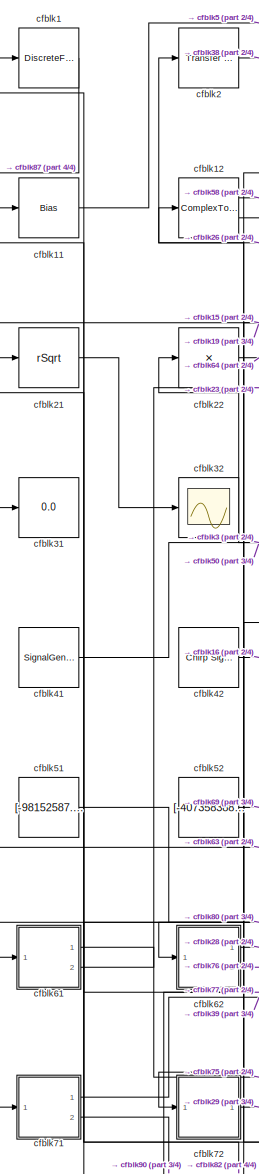
[diagram: root canvas - part 1/4, left side, full height]
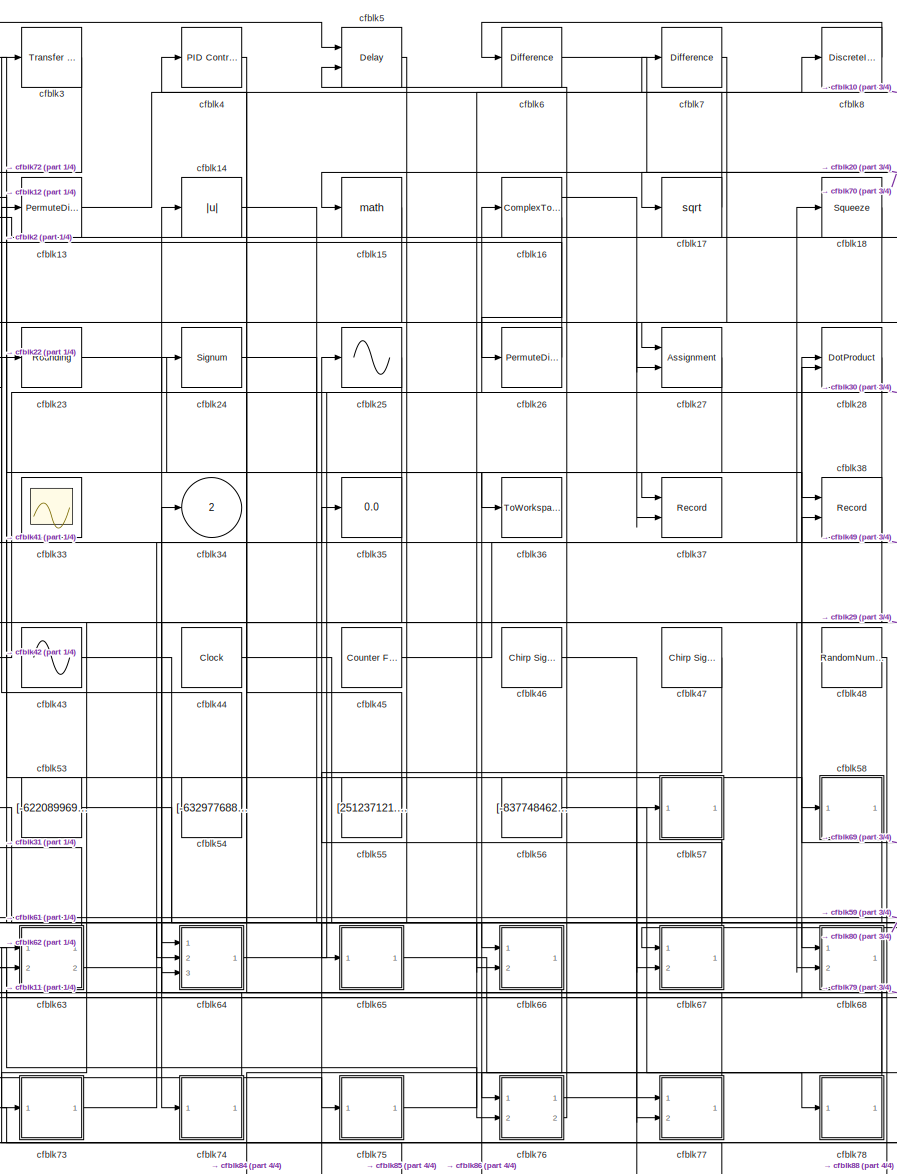
[diagram: root canvas - part 2/4, center side, full height]
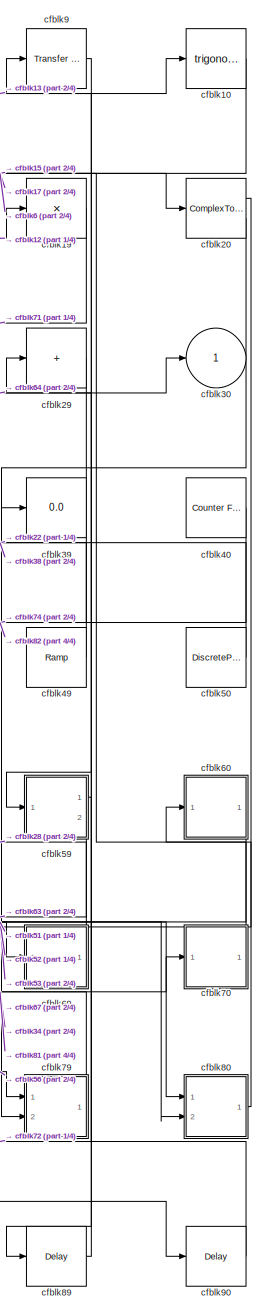
[diagram: root canvas - part 3/4, right side, full height]
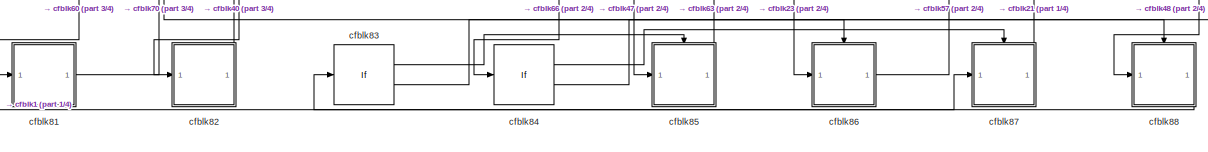
[diagram: root canvas - part 4/4, full width, bottom band]
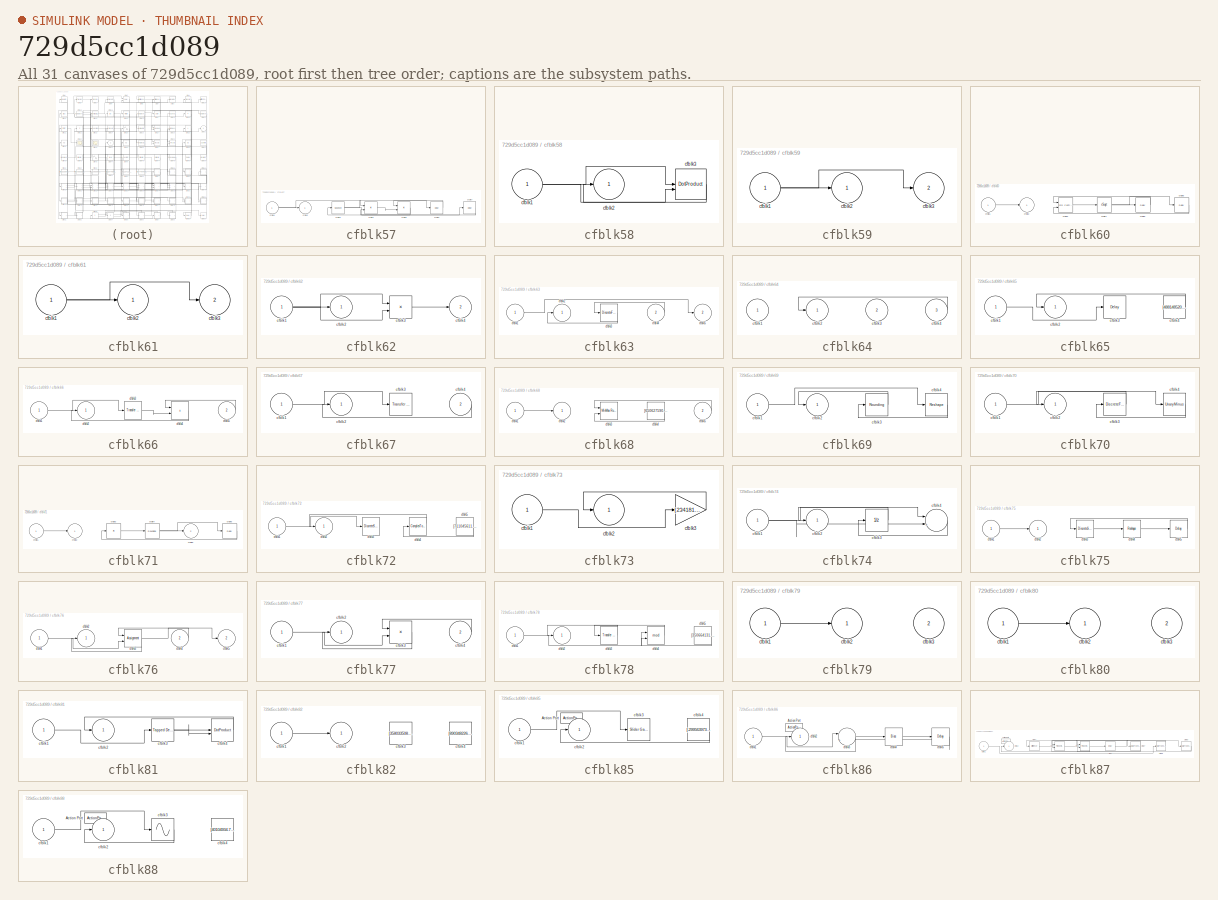
[diagram: thumbnail index - all 31 canvases of the model, root first then tree order]
MODEL slx_729d5cc1d089
KIND model
CONFIG AbsTol = auto
CONFIG EnableMultiTasking = off
CONFIG FixedStep = auto
CONFIG MaxStep = auto
CONFIG MinStep = auto
CONFIG RelTol = 1e-3
CONFIG SampleTimeConstraint = Unconstrained
CONFIG SolverName = VariableStepAuto
CONFIG StartTime = 0.0
CONFIG StopTime = 10.0
BLOCK [DiscreteFir] cfblk1
  InputPortMap = u0
  OutputPortMap = o0
  Ports = [1, 1]
  SampleTime = 1
BLOCK [Trigonometry] cfblk10
  Ports = [1, 1]
BLOCK [Bias] cfblk11
  Bias = [-196383932.496117]
  SaturateOnIntegerOverflow = off
BLOCK [ComplexToMagnitudeAngle] cfblk12
  Ports = [1, 2]
BLOCK [PermuteDimensions] cfblk13
BLOCK [Abs] cfblk14
  SaturateOnIntegerOverflow = off
BLOCK [Math] cfblk15
  Ports = [1, 1]
BLOCK [ComplexToMagnitudeAngle] cfblk16
  Ports = [1, 2]
BLOCK [Sqrt] cfblk17
BLOCK [Squeeze] cfblk18
BLOCK [Product] cfblk19
  Inputs = *
  Ports = [1, 1]
BLOCK [Reference] cfblk2  REF=simulink/Discrete/Transfer Fcn
First Order
  Ports = [1, 1]
  SourceBlock = simulink/Discrete/Transfer Fcn\nFirst Order
  SourceProductBaseCode = SL
  SourceType = First Order Transfer Fcn
BLOCK [ComplexToMagnitudeAngle] cfblk20
  Ports = [1, 2]
BLOCK [Sqrt] cfblk21
  AlgorithmType = Newton-Raphson
  Operator = rSqrt
BLOCK [Product] cfblk22
  Inputs = *
  Ports = [1, 1]
BLOCK [Rounding] cfblk23
BLOCK [Signum] cfblk24
BLOCK [Sin] cfblk25
  Ports = [1, 1]
  SampleTime = 0
  TimeSource = Use external signal
BLOCK [PermuteDimensions] cfblk26
BLOCK [Assignment] cfblk27
  DiagnosticForDimensions = Warning
  IndexOptions = Index vector (dialog)
  Indices = 1
  OutputSizes = 1
  Ports = [2, 1]
BLOCK [DotProduct] cfblk28
  OutDataTypeStr = Inherit: Inherit via internal rule
BLOCK [Sum] cfblk29
  IconShape = rectangular
  Inputs = +
  Ports = [1, 1]
BLOCK [Reference] cfblk3  REF=simulink/Discrete/Transfer Fcn
First Order
  Ports = [1, 1]
  SourceBlock = simulink/Discrete/Transfer Fcn\nFirst Order
  SourceProductBaseCode = SL
  SourceType = First Order Transfer Fcn
BLOCK [Outport] cfblk30
BLOCK [Display] cfblk31
  Decimation = 1
  Ports = [1]
BLOCK [Scope] cfblk32
  Floating = off
  NumInputPorts = 1
  Ports = [1]
  ScopeSpecificationString = Simulink.scopes.TimeScopeBlockCfg('CurrentConfiguration', extmgr.ConfigurationSet(extmgr.Configuration('Core','General UI',true),extmgr.Configuration('Core','Source UI',true),extmgr.Configuration('Sources','WiredSimulink',true),extmgr.Configuration('Visuals','Time Domain',true),extmgr.Configuration('Tools','Plot Navigation',true),extmgr.Configuration('Tools','Measurements',true)),'Version','2021b'...<+1ch>
BLOCK [Scope] cfblk33
  Floating = on
  NumInputPorts = 1
  Ports = []
  ScopeSpecificationString = Simulink.scopes.TimeScopeBlockCfg('CurrentConfiguration', extmgr.ConfigurationSet(extmgr.Configuration('Core','General UI',true),extmgr.Configuration('Core','Source UI',true),extmgr.Configuration('Sources','WiredSimulink',true),extmgr.Configuration('Visuals','Time Domain',true),extmgr.Configuration('Tools','Plot Navigation',true),extmgr.Configuration('Tools','Measurements',true)),'Version','2021b'...<+1ch>
BLOCK [Outport] cfblk34
  Port = 2
BLOCK [Display] cfblk35
  Decimation = 1
  Ports = [1]
BLOCK [ToWorkspace] cfblk36
  FixptAsFi = on
  MaxDataPoints = inf
  Ports = [1]
  SampleTime = -1
  SaveFormat = Timeseries
  VariableName = degkbxy
BLOCK [Record] cfblk37
  CompatibilityTag = XY
  FileSettingsInternal = {"entries":[{"content":{"excelSettings":{"content":{},"type":"Streamout.ExcelSettings"}},"type":"Streamout.FileSettingStorage","uuid":"bb6d756a-001a-408b-a095-1104ae711c65"}],"packageUris":["http://schema.mathworks.com/mf0/streamout_blocks/R2020a"],"version":"1.0"}
  Layout = [1 1]
  Ports = [2]
  SignalsInternal = {"entries":[{"content":{"signals":[{"content":{"blockPath":["sampleModel1_pp/cfblk37"],"channel":[],"dimensions":[1],"domain":"sampleModel1_pp/cfblk37","lineColor":"#64d413","plots":[],"port":1,"sid":[""],"signalID":289,"signalName":"cfblk14"},"type":"RecordBlkView.Signal","uuid":"b7125f66-6767-4e24-ab15-d829646fc9d1"},{"content":{"blockPath":["sampleModel1_pp/cfblk37"],"channel":[],"dimensions":[...<+385ch>
  VisualizationBindings = {"xyplotplugin":{"info":[{"series":[],"subplotID":1}]}}
BLOCK [Record] cfblk38
  CompatibilityTag = XY
  FileSettingsInternal = {"entries":[{"content":{"excelSettings":{"content":{},"type":"Streamout.ExcelSettings"}},"type":"Streamout.FileSettingStorage","uuid":"c6d59cba-a4d7-46c2-b90e-99ed7afc8239"}],"packageUris":["http://schema.mathworks.com/mf0/streamout_blocks/R2020a"],"version":"1.0"}
  Layout = [1 1]
  Ports = [2]
  SignalsInternal = {"entries":[{"content":{"signals":[{"content":{"blockPath":["sampleModel1_pp/cfblk38"],"channel":[],"dimensions":[1],"domain":"sampleModel1_pp/cfblk38","lineColor":"#fe330a","plots":[],"port":1,"sid":[""],"signalID":297,"signalName":"cfblk2"},"type":"RecordBlkView.Signal","uuid":"053d681e-aaab-497a-9fbb-af229faf3b0f"},{"content":{"blockPath":["sampleModel1_pp/cfblk38"],"channel":[],"dimensions":[1...<+382ch>
  VisualizationBindings = {"xyplotplugin":{"info":[{"series":[],"subplotID":1}]}}
BLOCK [Display] cfblk39
  Decimation = 1
  Ports = [1]
BLOCK [Reference] cfblk4  REF=slpidlib/PID Controller
  Ports = [1, 1]
  SourceBlock = slpidlib/PID Controller
  SourceProductBaseCode = SL
  SourceType = PID 1dof
BLOCK [Reference] cfblk40  REF=simulink/Sources/Counter
Free-Running
  Ports = [0, 1]
  SourceBlock = simulink/Sources/Counter\nFree-Running
  SourceProductBaseCode = SL
  SourceType = Counter Free-Running
BLOCK [SignalGenerator] cfblk41
  Amplitude = [-21494723.199962]
  Ports = [0, 1]
  WaveForm = square
BLOCK [Reference] cfblk42  REF=simulink/Sources/Chirp Signal
  Ports = [0, 1]
  SourceBlock = simulink/Sources/Chirp Signal
  SourceProductBaseCode = SL
  SourceType = chirp
BLOCK [Sin] cfblk43
  Amplitude = [-220522326.077493]
  Bias = [-516617428.172335]
  Ports = [0, 1]
  SampleTime = 0
BLOCK [Clock] cfblk44
BLOCK [Reference] cfblk45  REF=simulink/Sources/Counter
Free-Running
  Ports = [0, 1]
  SourceBlock = simulink/Sources/Counter\nFree-Running
  SourceProductBaseCode = SL
  SourceType = Counter Free-Running
BLOCK [Reference] cfblk46  REF=simulink/Sources/Chirp Signal
  Ports = [0, 1]
  SourceBlock = simulink/Sources/Chirp Signal
  SourceProductBaseCode = SL
  SourceType = chirp
BLOCK [Reference] cfblk47  REF=simulink/Sources/Chirp Signal
  Ports = [0, 1]
  SourceBlock = simulink/Sources/Chirp Signal
  SourceProductBaseCode = SL
  SourceType = chirp
BLOCK [RandomNumber] cfblk48
  Mean = [-53044.017326]
  SampleTime = 0.1
  Seed = [821194040.000000]
  Variance = [35315.857122]
BLOCK [Reference] cfblk49  REF=simulink/Sources/Ramp
  Ports = [0, 1]
  SourceBlock = simulink/Sources/Ramp
  SourceProductBaseCode = SL
  SourceType = Ramp
BLOCK [Delay] cfblk5
  InputPortMap = u0,e6
  Ports = [2, 1]
  SampleTime = 1
  ShowEnablePort = on
BLOCK [DiscretePulseGenerator] cfblk50
  Amplitude = [298230949.912904]
  Period = [73172238.834145]
  PhaseDelay = [6.000000]
  Ports = [0, 1]
  PulseType = Time based
  PulseWidth = 5
BLOCK [Constant] cfblk51
  SampleTime = 1
  Value = [-98152587.138110]
BLOCK [Constant] cfblk52
  SampleTime = 1
  Value = [-407358388.784454]
BLOCK [Constant] cfblk53
  SampleTime = 1
  Value = [-622089969.934911]
BLOCK [Constant] cfblk54
  SampleTime = 1
  Value = [-632977688.525460]
BLOCK [Constant] cfblk55
  SampleTime = 1
  Value = [251237121.459381]
BLOCK [Constant] cfblk56
  SampleTime = 1
  Value = [-837748462.268430]
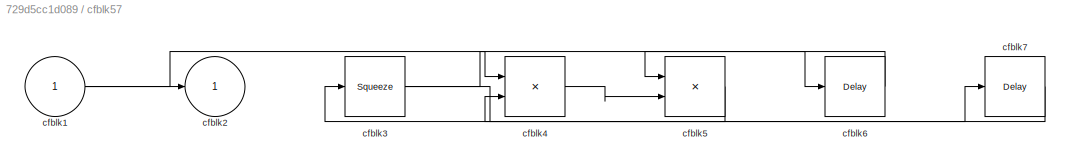
BLOCK [SubSystem] cfblk57
  Ports = [1, 1]
  RequestExecContextInheritance = off
BLOCK [Inport] cfblk57/cfblk1
BLOCK [Outport] cfblk57/cfblk2
BLOCK [Squeeze] cfblk57/cfblk3
BLOCK [Product] cfblk57/cfblk4
  Ports = [2, 1]
BLOCK [Product] cfblk57/cfblk5
  Ports = [2, 1]
BLOCK [Delay] cfblk57/cfblk6
  InputPortMap = u0
  Ports = [1, 1]
  SampleTime = 1
BLOCK [Delay] cfblk57/cfblk7
  InputPortMap = u0
  Ports = [1, 1]
  SampleTime = 1
BLOCK [SubSystem] cfblk58
  Ports = [1, 1]
  RequestExecContextInheritance = off
BLOCK [Inport] cfblk58/cfblk1
BLOCK [Outport] cfblk58/cfblk2
BLOCK [DotProduct] cfblk58/cfblk3
  OutDataTypeStr = Inherit: Inherit via internal rule
BLOCK [SubSystem] cfblk59
  Ports = [1, 2]
  RequestExecContextInheritance = off
BLOCK [Inport] cfblk59/cfblk1
BLOCK [Outport] cfblk59/cfblk2
BLOCK [Outport] cfblk59/cfblk3
  Port = 2
BLOCK [Reference] cfblk6  REF=simulink/Discrete/Difference
  Ports = [1, 1]
  SourceBlock = simulink/Discrete/Difference
  SourceProductBaseCode = SL
  SourceType = Difference
BLOCK [SubSystem] cfblk60
  Ports = [1, 1]
  RequestExecContextInheritance = off
BLOCK [Inport] cfblk60/cfblk1
BLOCK [Outport] cfblk60/cfblk2
BLOCK [Reference] cfblk60/cfblk3  REF=slpidlib/PID Controller (2DOF)
  Ports = [2, 1]
  SourceBlock = slpidlib/PID Controller (2DOF)
  SourceProductBaseCode = SL
  SourceType = PID 2dof
BLOCK [Sqrt] cfblk60/cfblk4
  AlgorithmType = Newton-Raphson
  Operator = rSqrt
BLOCK [Delay] cfblk60/cfblk5
  InputPortMap = u0
  Ports = [1, 1]
  SampleTime = 1
BLOCK [Delay] cfblk60/cfblk6
  InputPortMap = u0
  Ports = [1, 1]
  SampleTime = 1
BLOCK [SubSystem] cfblk61
  Ports = [1, 2]
  RequestExecContextInheritance = off
BLOCK [Inport] cfblk61/cfblk1
BLOCK [Outport] cfblk61/cfblk2
BLOCK [Outport] cfblk61/cfblk3
  Port = 2
BLOCK [SubSystem] cfblk62
  Ports = [1, 2]
  RequestExecContextInheritance = off
BLOCK [Inport] cfblk62/cfblk1
BLOCK [Outport] cfblk62/cfblk2
BLOCK [Product] cfblk62/cfblk3
  Ports = [2, 1]
BLOCK [Outport] cfblk62/cfblk4
  Port = 2
BLOCK [SubSystem] cfblk63
  Ports = [2, 2]
  RequestExecContextInheritance = off
BLOCK [Inport] cfblk63/cfblk1
BLOCK [Outport] cfblk63/cfblk2
BLOCK [DiscreteFir] cfblk63/cfblk3
  InputPortMap = u0
  OutputPortMap = o0
  Ports = [1, 1]
  SampleTime = 1
BLOCK [Inport] cfblk63/cfblk4
  Port = 2
BLOCK [Outport] cfblk63/cfblk5
  Port = 2
BLOCK [SubSystem] cfblk64
  Ports = [3, 1]
  RequestExecContextInheritance = off
BLOCK [Inport] cfblk64/cfblk1
BLOCK [Outport] cfblk64/cfblk2
BLOCK [Inport] cfblk64/cfblk3
  Port = 2
BLOCK [Inport] cfblk64/cfblk4
  Port = 3
BLOCK [SubSystem] cfblk65
  Ports = [1, 1]
  RequestExecContextInheritance = off
BLOCK [Inport] cfblk65/cfblk1
BLOCK [Outport] cfblk65/cfblk2
BLOCK [Delay] cfblk65/cfblk3
  InputPortMap = u0
  Ports = [1, 1]
  SampleTime = 1
BLOCK [Constant] cfblk65/cfblk4
  SampleTime = 1
  Value = [488148520.734925]
BLOCK [SubSystem] cfblk66
  Ports = [2, 1]
  RequestExecContextInheritance = off
BLOCK [Inport] cfblk66/cfblk1
BLOCK [Outport] cfblk66/cfblk2
BLOCK [Reference] cfblk66/cfblk3  REF=simulink/Discrete/Transfer Fcn
Real Zero
  Ports = [1, 1]
  SourceBlock = simulink/Discrete/Transfer Fcn\nReal Zero
  SourceProductBaseCode = SL
  SourceType = Transfer Fcn Real Zero
BLOCK [Sum] cfblk66/cfblk4
  IconShape = rectangular
  Ports = [2, 1]
BLOCK [Inport] cfblk66/cfblk5
  Port = 2
BLOCK [SubSystem] cfblk67
  Ports = [2, 1]
  RequestExecContextInheritance = off
BLOCK [Inport] cfblk67/cfblk1
BLOCK [Outport] cfblk67/cfblk2
BLOCK [Reference] cfblk67/cfblk3  REF=simulink/Discrete/Transfer Fcn
Lead or Lag
  Ports = [1, 1]
  SourceBlock = simulink/Discrete/Transfer Fcn\nLead or Lag
  SourceProductBaseCode = SL
  SourceType = Lead or Lag Compensator
BLOCK [Inport] cfblk67/cfblk4
  Port = 2
BLOCK [SubSystem] cfblk68
  Ports = [2, 1]
  RequestExecContextInheritance = off
BLOCK [Inport] cfblk68/cfblk1
BLOCK [Outport] cfblk68/cfblk2
BLOCK [Reference] cfblk68/cfblk3  REF=simulink/Math
Operations/MinMax
Running
Resettable
  Ports = [2, 1]
  SourceBlock = simulink/Math\nOperations/MinMax\nRunning\nResettable
  SourceProductBaseCode = SL
  SourceType = MinMax Running Resettable
BLOCK [Constant] cfblk68/cfblk4
  SampleTime = 1
  Value = [650627590.804091]
BLOCK [Inport] cfblk68/cfblk5
  Port = 2
BLOCK [SubSystem] cfblk69
  Ports = [1, 1]
  RequestExecContextInheritance = off
BLOCK [Inport] cfblk69/cfblk1
BLOCK [Outport] cfblk69/cfblk2
BLOCK [Rounding] cfblk69/cfblk3
BLOCK [Reshape] cfblk69/cfblk4
  Ports = [1, 1]
BLOCK [Reference] cfblk7  REF=simulink/Discrete/Difference
  Ports = [1, 1]
  SourceBlock = simulink/Discrete/Difference
  SourceProductBaseCode = SL
  SourceType = Difference
BLOCK [SubSystem] cfblk70
  Ports = [1, 1]
  RequestExecContextInheritance = off
BLOCK [Inport] cfblk70/cfblk1
BLOCK [Outport] cfblk70/cfblk2
BLOCK [DiscreteFilter] cfblk70/cfblk3
  InputPortMap = u0
  Ports = [1, 1]
  SampleTime = 1
BLOCK [UnaryMinus] cfblk70/cfblk4
BLOCK [SubSystem] cfblk71
  Ports = [1, 2]
  RequestExecContextInheritance = off
BLOCK [Inport] cfblk71/cfblk1
BLOCK [Outport] cfblk71/cfblk2
BLOCK [Product] cfblk71/cfblk3
  Inputs = *
  Ports = [1, 1]
BLOCK [Rounding] cfblk71/cfblk4
BLOCK [Outport] cfblk71/cfblk5
  Port = 2
BLOCK [Delay] cfblk71/cfblk6
  InputPortMap = u0
  Ports = [1, 1]
  SampleTime = 1
BLOCK [SubSystem] cfblk72
  Ports = [1, 1]
  RequestExecContextInheritance = off
BLOCK [Inport] cfblk72/cfblk1
BLOCK [Outport] cfblk72/cfblk2
BLOCK [DiscreteStateSpace] cfblk72/cfblk3
BLOCK [ComplexToMagnitudeAngle] cfblk72/cfblk4
  Ports = [1, 2]
BLOCK [Constant] cfblk72/cfblk5
  SampleTime = 1
  Value = [711045611.691823]
BLOCK [SubSystem] cfblk73
  Ports = [1, 1]
  RequestExecContextInheritance = off
BLOCK [Inport] cfblk73/cfblk1
BLOCK [Outport] cfblk73/cfblk2
BLOCK [Gain] cfblk73/cfblk3
  Gain = [234181768.786447]
BLOCK [SubSystem] cfblk74
  Ports = [1, 1]
  RequestExecContextInheritance = off
BLOCK [Inport] cfblk74/cfblk1
BLOCK [Outport] cfblk74/cfblk2
BLOCK [UnitDelay] cfblk74/cfblk3
  HasFrameUpgradeWarning = on
BLOCK [Sum] cfblk74/cfblk4
  Inputs = |++
  Ports = [2, 1]
BLOCK [SubSystem] cfblk75
  Ports = [1, 1]
  RequestExecContextInheritance = off
BLOCK [Inport] cfblk75/cfblk1
BLOCK [Outport] cfblk75/cfblk2
BLOCK [DiscreteStateSpace] cfblk75/cfblk3
BLOCK [Reshape] cfblk75/cfblk4
  Ports = [1, 1]
BLOCK [Delay] cfblk75/cfblk5
  InputPortMap = u0
  Ports = [1, 1]
  SampleTime = 1
BLOCK [SubSystem] cfblk76
  Ports = [2, 2]
  RequestExecContextInheritance = off
BLOCK [Inport] cfblk76/cfblk1
BLOCK [Outport] cfblk76/cfblk2
BLOCK [Assignment] cfblk76/cfblk3
  DiagnosticForDimensions = Warning
  IndexOptions = Index vector (dialog)
  Indices = 1
  OutputSizes = 1
  Ports = [2, 1]
BLOCK [Inport] cfblk76/cfblk4
  Port = 2
BLOCK [Outport] cfblk76/cfblk5
  Port = 2
BLOCK [SubSystem] cfblk77
  Ports = [2, 1]
  RequestExecContextInheritance = off
BLOCK [Inport] cfblk77/cfblk1
BLOCK [Outport] cfblk77/cfblk2
BLOCK [Product] cfblk77/cfblk3
  Ports = [2, 1]
BLOCK [Inport] cfblk77/cfblk4
  Port = 2
BLOCK [SubSystem] cfblk78
  Ports = [1, 1]
  RequestExecContextInheritance = off
BLOCK [Inport] cfblk78/cfblk1
BLOCK [Outport] cfblk78/cfblk2
BLOCK [Reference] cfblk78/cfblk3  REF=simulink/Discrete/Transfer Fcn
Lead or Lag
  Ports = [1, 1]
  SourceBlock = simulink/Discrete/Transfer Fcn\nLead or Lag
  SourceProductBaseCode = SL
  SourceType = Lead or Lag Compensator
BLOCK [Math] cfblk78/cfblk4
  Operator = mod
  Ports = [2, 1]
BLOCK [Constant] cfblk78/cfblk5
  SampleTime = 1
  Value = [350664131.493999]
BLOCK [SubSystem] cfblk79
  Ports = [2, 1]
  RequestExecContextInheritance = off
BLOCK [Inport] cfblk79/cfblk1
BLOCK [Outport] cfblk79/cfblk2
BLOCK [Inport] cfblk79/cfblk3
  Port = 2
BLOCK [DiscreteIntegrator] cfblk8
  ICPrevOutput = DiscIntNeverNeededParam
  ICPrevScaledInput = DiscIntNeverNeededParam
  InitialConditionSetting = Auto
  Ports = [1, 1]
BLOCK [SubSystem] cfblk80
  Ports = [2, 1]
  RequestExecContextInheritance = off
BLOCK [Inport] cfblk80/cfblk1
BLOCK [Outport] cfblk80/cfblk2
BLOCK [Inport] cfblk80/cfblk3
  Port = 2
BLOCK [SubSystem] cfblk81
  Ports = [1, 1]
  RequestExecContextInheritance = off
BLOCK [Inport] cfblk81/cfblk1
BLOCK [Outport] cfblk81/cfblk2
BLOCK [Reference] cfblk81/cfblk3  REF=simulink/Discrete/Tapped Delay
  Ports = [1, 1]
  SourceBlock = simulink/Discrete/Tapped Delay
  SourceProductBaseCode = SL
  SourceType = Tapped Delay Line
BLOCK [DotProduct] cfblk81/cfblk4
  OutDataTypeStr = Inherit: Inherit via internal rule
BLOCK [SubSystem] cfblk82
  Ports = [1, 1]
  RequestExecContextInheritance = off
BLOCK [Inport] cfblk82/cfblk1
BLOCK [Outport] cfblk82/cfblk2
BLOCK [Constant] cfblk82/cfblk3
  SampleTime = 1
  Value = [358033508.186404]
BLOCK [Constant] cfblk82/cfblk4
  SampleTime = 1
  Value = [890348226.218803]
BLOCK [If] cfblk83
  IfExpression = u1 >= 0
  Ports = [1, 2]
  SampleTime = 1
BLOCK [If] cfblk84
  IfExpression = u1 >= 0
  Ports = [1, 2]
  SampleTime = 1
BLOCK [SubSystem] cfblk85
  Ports = [1, 1, 0, 0, 0, 0, 0, 1]
  RequestExecContextInheritance = off
  TreatAsAtomicUnit = on
BLOCK [ActionPort] cfblk85/Action Port
  ActionPortLabel = if(u1 >= 0)
BLOCK [Inport] cfblk85/cfblk1
BLOCK [Outport] cfblk85/cfblk2
BLOCK [Reference] cfblk85/cfblk3  REF=simulink/Math
Operations/Slider
Gain
  Ports = [1, 1]
  SourceBlock = simulink/Math\nOperations/Slider\nGain
  SourceProductBaseCode = SL
  SourceType = Slider Gain
BLOCK [Constant] cfblk85/cfblk4
  SampleTime = 1
  Value = [-299563973.117790]
BLOCK [SubSystem] cfblk86
  Ports = [1, 1, 0, 0, 0, 0, 0, 1]
  RequestExecContextInheritance = off
  TreatAsAtomicUnit = on
BLOCK [ActionPort] cfblk86/Action Port
  ActionPortLabel = else
BLOCK [Inport] cfblk86/cfblk1
BLOCK [Outport] cfblk86/cfblk2
BLOCK [Sum] cfblk86/cfblk3
  Inputs = |++
  Ports = [2, 1]
BLOCK [Bias] cfblk86/cfblk4
  Bias = [879658940.689841]
  SaturateOnIntegerOverflow = off
BLOCK [Delay] cfblk86/cfblk5
  InputPortMap = u0
  Ports = [1, 1]
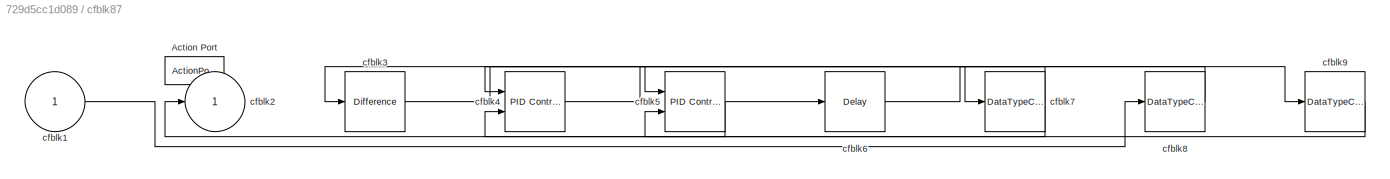
BLOCK [SubSystem] cfblk87
  Ports = [1, 1, 0, 0, 0, 0, 0, 1]
  RequestExecContextInheritance = off
  TreatAsAtomicUnit = on
BLOCK [ActionPort] cfblk87/Action Port
  ActionPortLabel = if(u1 >= 0)
BLOCK [Inport] cfblk87/cfblk1
BLOCK [Outport] cfblk87/cfblk2
BLOCK [Reference] cfblk87/cfblk3  REF=simulink/Discrete/Difference
  Ports = [1, 1]
  SourceBlock = simulink/Discrete/Difference
  SourceProductBaseCode = SL
  SourceType = Difference
BLOCK [Reference] cfblk87/cfblk4  REF=slpidlib/PID Controller (2DOF)
  Ports = [2, 1]
  SourceBlock = slpidlib/PID Controller (2DOF)
  SourceProductBaseCode = SL
  SourceType = PID 2dof
BLOCK [Reference] cfblk87/cfblk5  REF=slpidlib/PID Controller (2DOF)
  Ports = [2, 1]
  SourceBlock = slpidlib/PID Controller (2DOF)
  SourceProductBaseCode = SL
  SourceType = PID 2dof
BLOCK [Delay] cfblk87/cfblk6
  InputPortMap = u0
  Ports = [1, 1]
BLOCK [DataTypeConversion] cfblk87/cfblk7
  RndMeth = Floor
  SaturateOnIntegerOverflow = off
BLOCK [DataTypeConversion] cfblk87/cfblk8
  RndMeth = Floor
  SaturateOnIntegerOverflow = off
BLOCK [DataTypeConversion] cfblk87/cfblk9
  RndMeth = Floor
  SaturateOnIntegerOverflow = off
BLOCK [SubSystem] cfblk88
  Ports = [1, 1, 0, 0, 0, 0, 0, 1]
  RequestExecContextInheritance = off
  TreatAsAtomicUnit = on
BLOCK [ActionPort] cfblk88/Action Port
  ActionPortLabel = else
BLOCK [Inport] cfblk88/cfblk1
BLOCK [Outport] cfblk88/cfblk2
BLOCK [Sin] cfblk88/cfblk3
  Ports = [1, 1]
  SampleTime = 0
  TimeSource = Use external signal
BLOCK [Constant] cfblk88/cfblk4
  SampleTime = 1
  Value = [40104934.780774]
BLOCK [Delay] cfblk89
  InputPortMap = u0
  Ports = [1, 1]
  SampleTime = 1
BLOCK [Reference] cfblk9  REF=simulink/Discrete/Transfer Fcn
First Order
  Ports = [1, 1]
  SourceBlock = simulink/Discrete/Transfer Fcn\nFirst Order
  SourceProductBaseCode = SL
  SourceType = First Order Transfer Fcn
BLOCK [Delay] cfblk90
  InputPortMap = u0
  Ports = [1, 1]
  SampleTime = 1
LINE cfblk10:1 -> cfblk17:1
LINE cfblk11:1 -> cfblk5:1
LINE cfblk12:1 -> cfblk58:1
LINE cfblk12:2 -> cfblk19:1
LINE cfblk13:1 -> cfblk10:1
LINE cfblk14:1 -> cfblk37:1
LINE cfblk15:1 -> cfblk62:1
LINE cfblk16:1 -> cfblk37:2
LINE cfblk16:2 -> cfblk26:1
LINE cfblk17:1 -> cfblk7:1
LINE cfblk18:1 -> cfblk27:2
LINE cfblk19:1 -> cfblk71:1
LINE cfblk1:1 -> cfblk87:1
LINE cfblk20:1 -> cfblk67:1
LINE cfblk20:2 -> cfblk79:2
LINE cfblk21:1 -> cfblk32:1
LINE cfblk22:1 -> cfblk64:2
LINE cfblk23:1 -> cfblk86:1
LINE cfblk24:1 -> cfblk66:2
LINE cfblk25:1 -> cfblk73:1
LINE cfblk26:1 -> cfblk2:1
LINE cfblk27:1 -> cfblk36:1
LINE cfblk28:1 -> cfblk68:2
LINE cfblk29:1 -> cfblk74:1
LINE cfblk2:1 -> cfblk38:1
LINE cfblk3:1 -> cfblk72:1
LINE cfblk40:1 -> cfblk82:1
LINE cfblk41:1 -> cfblk3:1
LINE cfblk42:1 -> cfblk16:1
LINE cfblk43:1 -> cfblk66:1
LINE cfblk44:1 -> cfblk68:1
LINE cfblk45:1 -> cfblk18:1
LINE cfblk46:1 -> cfblk77:2
LINE cfblk47:1 -> cfblk85:1
LINE cfblk48:1 -> cfblk88:1
LINE cfblk49:1 -> cfblk38:2
LINE cfblk4:1 -> cfblk64:1
LINE cfblk50:1 -> cfblk22:1
LINE cfblk51:1 -> cfblk80:2
LINE cfblk52:1 -> cfblk69:1
LINE cfblk53:1 -> cfblk80:1
LINE cfblk54:1 -> cfblk13:1
LINE cfblk55:1 -> cfblk24:1
LINE cfblk56:1 -> cfblk79:1
NET cfblk57/cfblk1:1 -> cfblk57/cfblk2:1, cfblk57/cfblk4:1
NET cfblk57/cfblk3:1 -> cfblk57/cfblk6:1, cfblk57/cfblk7:1
LINE cfblk57/cfblk4:1 -> cfblk57/cfblk5:2
LINE cfblk57/cfblk5:1 -> cfblk57/cfblk3:1
LINE cfblk57/cfblk6:1 -> cfblk57/cfblk5:1
LINE cfblk57/cfblk7:1 -> cfblk57/cfblk4:2
LINE cfblk57:1 -> cfblk67:2
NET cfblk58/cfblk1:1 -> cfblk58/cfblk3:1, cfblk58/cfblk3:2
LINE cfblk58/cfblk3:1 -> cfblk58/cfblk2:1
LINE cfblk58:1 -> cfblk61:1
NET cfblk59/cfblk1:1 -> cfblk59/cfblk2:1, cfblk59/cfblk3:1
LINE cfblk59:1 -> cfblk89:1
LINE cfblk59:2 -> cfblk63:2
LINE cfblk5:1 -> cfblk65:1
LINE cfblk60/cfblk1:1 -> cfblk60/cfblk2:1
LINE cfblk60/cfblk3:1 -> cfblk60/cfblk4:1
NET cfblk60/cfblk4:1 -> cfblk60/cfblk5:1, cfblk60/cfblk6:1
LINE cfblk60/cfblk5:1 -> cfblk60/cfblk3:1
LINE cfblk60/cfblk6:1 -> cfblk60/cfblk3:2
LINE cfblk60:1 -> cfblk81:1
NET cfblk61/cfblk1:1 -> cfblk61/cfblk2:1, cfblk61/cfblk3:1
LINE cfblk61:1 -> cfblk75:1
LINE cfblk61:2 -> cfblk23:1
NET cfblk62/cfblk1:1 -> cfblk62/cfblk2:1, cfblk62/cfblk3:1, cfblk62/cfblk3:2
LINE cfblk62/cfblk3:1 -> cfblk62/cfblk4:1
LINE cfblk62:1 -> cfblk28:1
LINE cfblk62:2 -> cfblk76:2
LINE cfblk63/cfblk1:1 -> cfblk63/cfblk5:1
LINE cfblk63/cfblk3:1 -> cfblk63/cfblk2:1
LINE cfblk63/cfblk4:1 -> cfblk63/cfblk3:1
LINE cfblk63:1 -> cfblk31:1
LINE cfblk63:2 -> cfblk64:3
LINE cfblk64/cfblk4:1 -> cfblk64/cfblk2:1
LINE cfblk64:1 -> cfblk30:1
LINE cfblk65/cfblk1:1 -> cfblk65/cfblk3:1
LINE cfblk65/cfblk4:1 -> cfblk65/cfblk2:1
LINE cfblk65:1 -> cfblk78:1
LINE cfblk66/cfblk1:1 -> cfblk66/cfblk3:1
LINE cfblk66/cfblk3:1 -> cfblk66/cfblk4:2
LINE cfblk66/cfblk4:1 -> cfblk66/cfblk2:1
LINE cfblk66/cfblk5:1 -> cfblk66/cfblk4:1
LINE cfblk66:1 -> cfblk84:1
LINE cfblk67/cfblk1:1 -> cfblk67/cfblk3:1
LINE cfblk67/cfblk4:1 -> cfblk67/cfblk2:1
LINE cfblk67:1 -> cfblk25:1
LINE cfblk68/cfblk1:1 -> cfblk68/cfblk2:1
LINE cfblk68/cfblk4:1 -> cfblk68/cfblk3:2
LINE cfblk68/cfblk5:1 -> cfblk68/cfblk3:1
LINE cfblk68:1 -> cfblk76:1
LINE cfblk69/cfblk1:1 -> cfblk69/cfblk4:1
LINE cfblk69/cfblk3:1 -> cfblk69/cfblk2:1
LINE cfblk69/cfblk4:1 -> cfblk69/cfblk3:1
LINE cfblk69:1 -> cfblk28:2
LINE cfblk6:1 -> cfblk20:1
LINE cfblk70/cfblk1:1 -> cfblk70/cfblk4:1
LINE cfblk70/cfblk3:1 -> cfblk70/cfblk2:1
LINE cfblk70/cfblk4:1 -> cfblk70/cfblk3:1
LINE cfblk70:1 -> cfblk15:1
LINE cfblk71/cfblk1:1 -> cfblk71/cfblk2:1
LINE cfblk71/cfblk3:1 -> cfblk71/cfblk4:1
NET cfblk71/cfblk4:1 -> cfblk71/cfblk5:1, cfblk71/cfblk6:1
LINE cfblk71/cfblk6:1 -> cfblk71/cfblk3:1
LINE cfblk71:1 -> cfblk39:1
LINE cfblk71:2 -> cfblk90:1
LINE cfblk72/cfblk1:1 -> cfblk72/cfblk3:1
LINE cfblk72/cfblk4:1 -> cfblk72/cfblk2:1
LINE cfblk72/cfblk5:1 -> cfblk72/cfblk4:1
LINE cfblk72:1 -> cfblk29:1
LINE cfblk73/cfblk1:1 -> cfblk73/cfblk3:1
LINE cfblk73/cfblk3:1 -> cfblk73/cfblk2:1
LINE cfblk73:1 -> cfblk35:1
NET cfblk74/cfblk1:1 -> cfblk74/cfblk4:1, cfblk74/cfblk4:2
LINE cfblk74/cfblk3:1 -> cfblk74/cfblk2:1
LINE cfblk74/cfblk4:1 -> cfblk74/cfblk3:1
LINE cfblk74:1 -> cfblk14:1
LINE cfblk75/cfblk1:1 -> cfblk75/cfblk2:1
LINE cfblk75/cfblk3:1 -> cfblk75/cfblk4:1
LINE cfblk75/cfblk4:1 -> cfblk75/cfblk5:1
LINE cfblk75/cfblk5:1 -> cfblk75/cfblk3:1
LINE cfblk75:1 -> cfblk8:1
LINE cfblk76/cfblk1:1 -> cfblk76/cfblk3:2
NET cfblk76/cfblk3:1 -> cfblk76/cfblk2:1, cfblk76/cfblk5:1
LINE cfblk76/cfblk4:1 -> cfblk76/cfblk3:1
LINE cfblk76:1 -> cfblk77:1
LINE cfblk76:2 -> cfblk5:2
LINE cfblk77/cfblk1:1 -> cfblk77/cfblk3:2
LINE cfblk77/cfblk3:1 -> cfblk77/cfblk2:1
LINE cfblk77/cfblk4:1 -> cfblk77/cfblk3:1
LINE cfblk77:1 -> cfblk11:1
LINE cfblk78/cfblk1:1 -> cfblk78/cfblk4:1
LINE cfblk78/cfblk3:1 -> cfblk78/cfblk2:1
LINE cfblk78/cfblk4:1 -> cfblk78/cfblk3:1
LINE cfblk78/cfblk5:1 -> cfblk78/cfblk4:2
LINE cfblk78:1 -> cfblk4:1
LINE cfblk79/cfblk1:1 -> cfblk79/cfblk2:1
LINE cfblk79:1 -> cfblk34:1
LINE cfblk7:1 -> cfblk27:1
LINE cfblk80/cfblk1:1 -> cfblk80/cfblk2:1
LINE cfblk80:1 -> cfblk60:1
LINE cfblk81/cfblk1:1 -> cfblk81/cfblk3:1
NET cfblk81/cfblk3:1 -> cfblk81/cfblk4:1, cfblk81/cfblk4:2
LINE cfblk81/cfblk4:1 -> cfblk81/cfblk2:1
LINE cfblk81:1 -> cfblk70:1
LINE cfblk82/cfblk1:1 -> cfblk82/cfblk2:1
LINE cfblk82:1 -> cfblk1:1
LINE cfblk83:1 -> cfblk85:ifaction
LINE cfblk83:2 -> cfblk86:ifaction
LINE cfblk84:1 -> cfblk87:ifaction
LINE cfblk84:2 -> cfblk88:ifaction
LINE cfblk85/cfblk1:1 -> cfblk85/cfblk3:1
LINE cfblk85/cfblk4:1 -> cfblk85/cfblk2:1
LINE cfblk85:1 -> cfblk63:1
LINE cfblk86/cfblk1:1 -> cfblk86/cfblk3:1
NET cfblk86/cfblk3:1 -> cfblk86/cfblk2:1, cfblk86/cfblk4:1
LINE cfblk86/cfblk4:1 -> cfblk86/cfblk5:1
LINE cfblk86/cfblk5:1 -> cfblk86/cfblk3:2
LINE cfblk86:1 -> cfblk57:1
LINE cfblk87/cfblk1:1 -> cfblk87/cfblk8:1
LINE cfblk87/cfblk3:1 -> cfblk87/cfblk5:1
LINE cfblk87/cfblk4:1 -> cfblk87/cfblk7:1
NET cfblk87/cfblk5:1 -> cfblk87/cfblk2:1, cfblk87/cfblk6:1
LINE cfblk87/cfblk6:1 -> cfblk87/cfblk9:1
NET cfblk87/cfblk7:1 -> cfblk87/cfblk3:1, cfblk87/cfblk5:2
LINE cfblk87/cfblk8:1 -> cfblk87/cfblk4:1
LINE cfblk87/cfblk9:1 -> cfblk87/cfblk4:2
LINE cfblk87:1 -> cfblk21:1
LINE cfblk88/cfblk1:1 -> cfblk88/cfblk3:1
LINE cfblk88/cfblk3:1 -> cfblk88/cfblk2:1
LINE cfblk88:1 -> cfblk83:1
LINE cfblk89:1 -> cfblk9:1
LINE cfblk8:1 -> cfblk6:1
LINE cfblk90:1 -> cfblk12:1
LINE cfblk9:1 -> cfblk59:1
note: NET lines group one-source signal fan-out (src -> all destinations, sorted); 1:1 wires keep LINE
